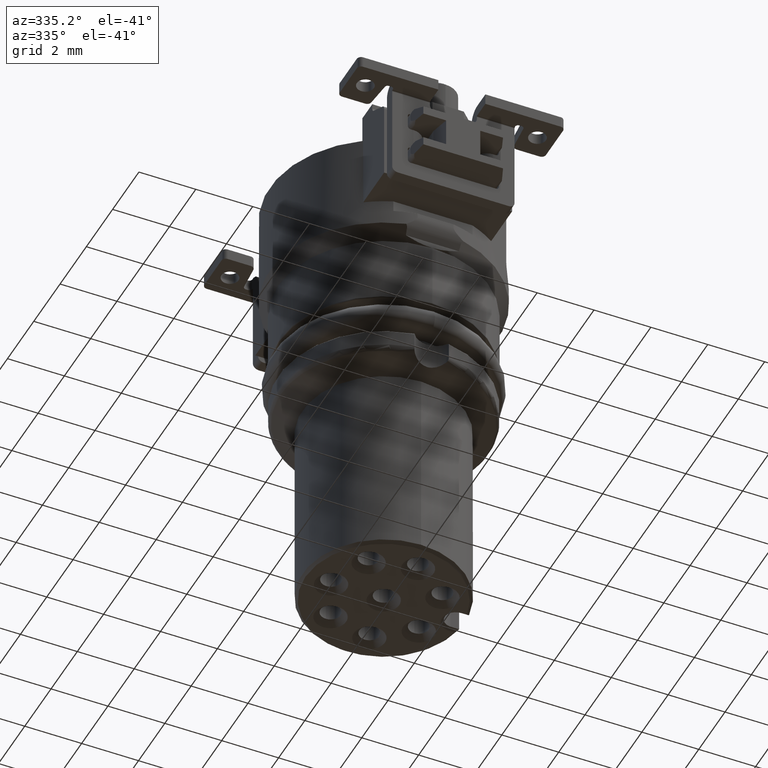
[diagram: clean part render]
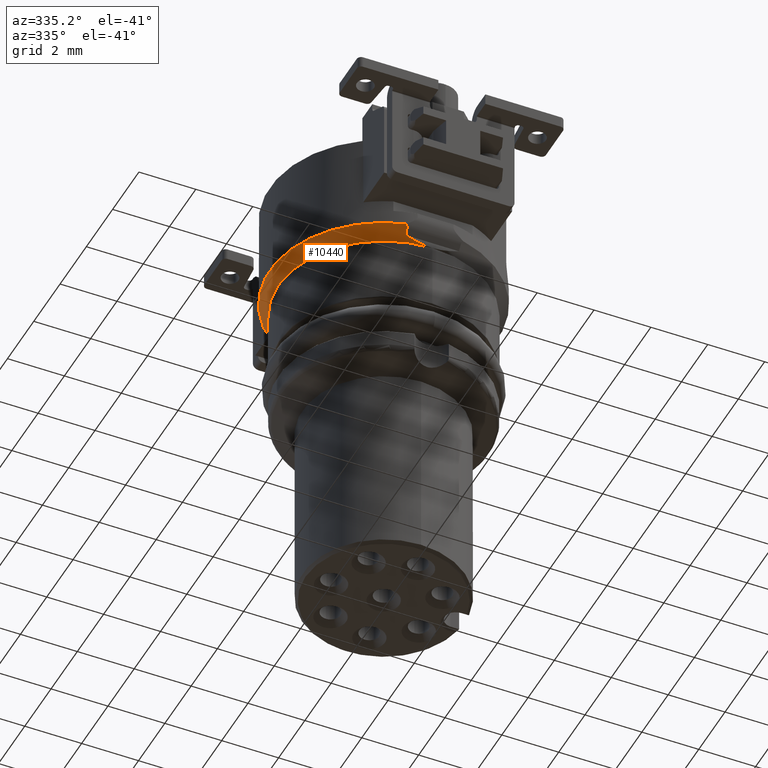
[diagram: same view with one face highlighted and labeled with its STEP entity id]
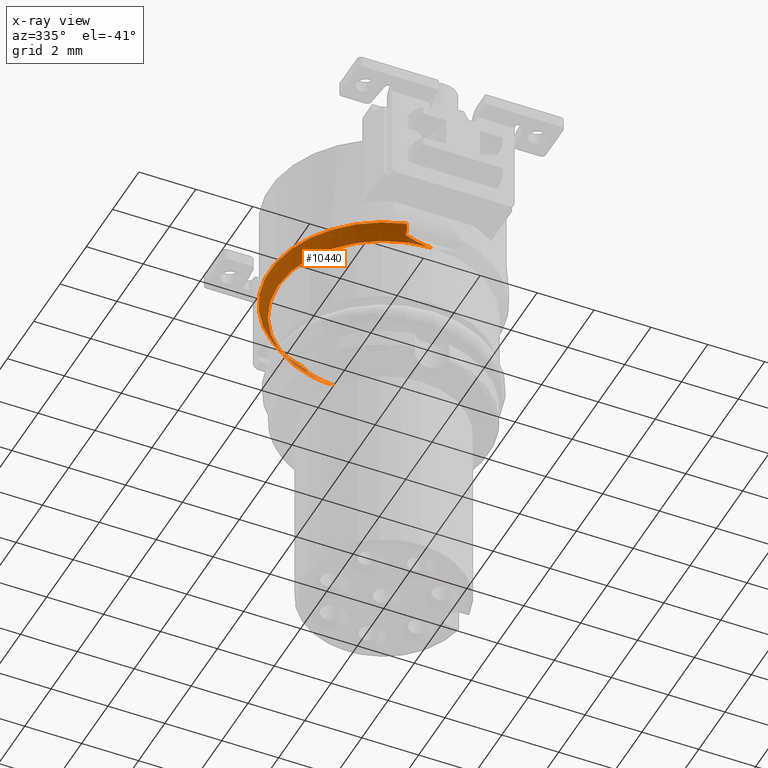
[diagram: x-ray of the same camera — body ghosted, the highlighted face saturated]
A machine part, auxiliary view. The second image highlights one B-rep face of the part: STEP entity #10440.
The next image is the same camera in x-ray: the body ghosted, the highlighted face saturated — about 3% of this face is hidden behind the body in this view.
In plain terms, the highlighted conical surface has half-angle 30 deg.
Its self-contained STEP definition (entity closure, byte-faithful):
#524=CARTESIAN_POINT('',(-9.943720652625E-1,3.874432112688E0,-4.5E0));
#575=CARTESIAN_POINT('',(-9.943720652625E-1,-3.874432112688E0,-4.5E0));
#588=CARTESIAN_POINT('',(0.E0,0.E0,-4.5E0));
#589=DIRECTION('',(0.E0,0.E0,1.E0));
#590=DIRECTION('',(-2.485930163156E-1,9.686080281719E-1,0.E0));
#591=AXIS2_PLACEMENT_3D('',#588,#589,#590);
#2651=CARTESIAN_POINT('',(1.068376835849E-8,3.699999999971E0,
-5.019615242373E0));
#2652=CARTESIAN_POINT('',(-7.504329832607E-2,3.699999999971E0,
-5.019615244249E0));
#2653=CARTESIAN_POINT('',(-2.260781828589E-1,3.700000000014E0,
-5.011668687322E0));
#2654=CARTESIAN_POINT('',(-4.541779621526E-1,3.699999999996E0,
-4.975552484746E0));
#2655=CARTESIAN_POINT('',(-6.877179817763E-1,3.700000000001E0,
-4.914057580533E0));
#2656=CARTESIAN_POINT('',(-8.494914143789E-1,3.7E0,-4.854322807607E0));
#2657=CARTESIAN_POINT('',(-9.315641318417E-1,3.7E0,-4.819615242271E0));
#2659=CARTESIAN_POINT('',(-9.458364821559E-1,3.816025403784E0,
-4.618653347947E0));
#2660=CARTESIAN_POINT('',(-9.442525268213E-1,3.803050933852E0,
-4.641125789072E0));
#2661=CARTESIAN_POINT('',(-9.410833939143E-1,3.777157165658E0,
-4.685975111183E0));
#2662=CARTESIAN_POINT('',(-9.363259719431E-1,3.738482027975E0,
-4.752962414639E0));
#2663=CARTESIAN_POINT('',(-9.331518381993E-1,3.712808951286E0,
-4.797429487852E0));
#2664=CARTESIAN_POINT('',(-9.315641318417E-1,3.7E0,-4.819615242271E0));
#2666=CARTESIAN_POINT('',(-9.943720652625E-1,3.874432112688E0,-4.5E0));
#2667=CARTESIAN_POINT('',(-9.841651531226E-1,3.868544423280E0,
-4.514272497552E0));
#2668=CARTESIAN_POINT('',(-9.670116381037E-1,3.856292283016E0,
-4.542124732746E0));
#2669=CARTESIAN_POINT('',(-9.508935599502E-1,3.836255484421E0,
-4.582537309674E0));
#2670=CARTESIAN_POINT('',(-9.466618478052E-1,3.822786125861E0,
-4.606943433814E0));
#2671=CARTESIAN_POINT('',(-9.458364821559E-1,3.816025403784E0,
-4.618653347947E0));
#2673=CARTESIAN_POINT('',(-9.458364821559E-1,-3.816025403784E0,
-4.618653347947E0));
#2674=CARTESIAN_POINT('',(-9.466628519931E-1,-3.822794351350E0,
-4.606929186851E0));
#2675=CARTESIAN_POINT('',(-9.509026141288E-1,-3.836273175767E0,
-4.582503802808E0));
#2676=CARTESIAN_POINT('',(-9.670263563274E-1,-3.856304178709E0,
-4.542098553465E0));
#2677=CARTESIAN_POINT('',(-9.841727652113E-1,-3.868548814188E0,
-4.514261853440E0));
#2678=CARTESIAN_POINT('',(-9.943720652625E-1,-3.874432112688E0,-4.5E0));
#2680=CARTESIAN_POINT('',(-9.315641318417E-1,-3.7E0,-4.819615242271E0));
#2681=CARTESIAN_POINT('',(-9.331518382033E-1,-3.712808951318E0,
-4.797429487796E0));
#2682=CARTESIAN_POINT('',(-9.363259719524E-1,-3.738482028051E0,
-4.752962414509E0));
#2683=CARTESIAN_POINT('',(-9.410833939235E-1,-3.777157165733E0,
-4.685975111053E0));
#2684=CARTESIAN_POINT('',(-9.442525268252E-1,-3.803050933884E0,
-4.641125789016E0));
#2685=CARTESIAN_POINT('',(-9.458364821559E-1,-3.816025403784E0,
-4.618653347947E0));
#2687=CARTESIAN_POINT('',(-9.315641318417E-1,-3.7E0,-4.819615242271E0));
#2688=CARTESIAN_POINT('',(-8.493670666593E-1,-3.7E0,-4.854375392762E0));
#2689=CARTESIAN_POINT('',(-6.874080008922E-1,-3.700000000001E0,
-4.914161153097E0));
#2690=CARTESIAN_POINT('',(-4.538442470193E-1,-3.699999999996E0,
-4.975620152893E0));
#2691=CARTESIAN_POINT('',(-2.258823231950E-1,-3.700000000014E0,
-5.011683513965E0));
#2692=CARTESIAN_POINT('',(-7.496878670292E-2,-3.699999999971E0,
-5.019615242373E0));
#2693=CARTESIAN_POINT('',(-1.068378148800E-8,-3.699999999971E0,
-5.019615242373E0));
#2707=CARTESIAN_POINT('',(0.E0,0.E0,-5.019615242271E0));
#2708=DIRECTION('',(0.E0,0.E0,1.E0));
#2709=DIRECTION('',(0.E0,1.E0,0.E0));
#2710=AXIS2_PLACEMENT_3D('',#2707,#2708,#2709);
#5933=CARTESIAN_POINT('',(-1.068378148800E-8,-3.699999999971E0,
-5.019615242373E0));
#5934=VERTEX_POINT('',#5933);
#5935=CARTESIAN_POINT('',(1.068376835849E-8,3.699999999971E0,
-5.019615242373E0));
#5936=VERTEX_POINT('',#5935);
#5955=VERTEX_POINT('',#524);
#5970=VERTEX_POINT('',#575);
#5971=VERTEX_POINT('',#2657);
#5972=VERTEX_POINT('',#2659);
#5973=VERTEX_POINT('',#2673);
#5974=VERTEX_POINT('',#2680);
#10421=CARTESIAN_POINT('',(0.E0,0.E0,-4.759807621263E0));
#10422=DIRECTION('',(0.E0,0.E0,1.E0));
#10423=DIRECTION('',(0.E0,-1.E0,0.E0));
#10424=AXIS2_PLACEMENT_3D('',#10421,#10422,#10423);
#10425=CONICAL_SURFACE('',#10424,3.849999999926E0,3.E1);
#10426=ORIENTED_EDGE('',*,*,#10413,.T.);
#10428=ORIENTED_EDGE('',*,*,#10427,.F.);
#10429=ORIENTED_EDGE('',*,*,#7221,.F.);
#10430=ORIENTED_EDGE('',*,*,#7606,.T.);
#10431=ORIENTED_EDGE('',*,*,#10380,.F.);
#10433=ORIENTED_EDGE('',*,*,#10432,.F.);
#10435=ORIENTED_EDGE('',*,*,#10434,.T.);
#10437=ORIENTED_EDGE('',*,*,#10436,.F.);
#10438=EDGE_LOOP('',(#10426,#10428,#10429,#10430,#10431,#10433,#10435,#10437));
#10439=FACE_OUTER_BOUND('',#10438,.F.);
#592=CIRCLE('',#591,4.E0);
#2658=B_SPLINE_CURVE_WITH_KNOTS('',3,(#2651,#2652,#2653,#2654,#2655,#2656,
#2657),.UNSPECIFIED.,.F.,.F.,(4,1,1,1,4),(0.E0,2.5E-1,5.E-1,7.5E-1,1.E0),
.UNSPECIFIED.);
#2665=B_SPLINE_CURVE_WITH_KNOTS('',3,(#2659,#2660,#2661,#2662,#2663,#2664),
.UNSPECIFIED.,.F.,.F.,(4,1,1,4),(0.E0,3.333333333333E-1,6.666666666667E-1,1.E0),
.UNSPECIFIED.);
#2672=B_SPLINE_CURVE_WITH_KNOTS('',3,(#2666,#2667,#2668,#2669,#2670,#2671),
.UNSPECIFIED.,.F.,.F.,(4,1,1,4),(0.E0,3.333333333333E-1,6.666666666667E-1,1.E0),
.UNSPECIFIED.);
#2679=B_SPLINE_CURVE_WITH_KNOTS('',3,(#2673,#2674,#2675,#2676,#2677,#2678),
.UNSPECIFIED.,.F.,.F.,(4,1,1,4),(0.E0,3.333333333333E-1,6.666666666667E-1,1.E0),
.UNSPECIFIED.);
#2686=B_SPLINE_CURVE_WITH_KNOTS('',3,(#2680,#2681,#2682,#2683,#2684,#2685),
.UNSPECIFIED.,.F.,.F.,(4,1,1,4),(0.E0,3.333333333333E-1,6.666666666667E-1,1.E0),
.UNSPECIFIED.);
#2694=B_SPLINE_CURVE_WITH_KNOTS('',3,(#2687,#2688,#2689,#2690,#2691,#2692,
#2693),.UNSPECIFIED.,.F.,.F.,(4,1,1,1,4),(0.E0,2.5E-1,5.E-1,7.5E-1,1.E0),
.UNSPECIFIED.);
#2711=CIRCLE('',#2710,3.7E0);
#7221=EDGE_CURVE('',#5955,#5972,#2672,.T.);
#7606=EDGE_CURVE('',#5955,#5970,#592,.T.);
#10380=EDGE_CURVE('',#5973,#5970,#2679,.T.);
#10413=EDGE_CURVE('',#5936,#5971,#2658,.T.);
#10427=EDGE_CURVE('',#5972,#5971,#2665,.T.);
#10432=EDGE_CURVE('',#5974,#5973,#2686,.T.);
#10434=EDGE_CURVE('',#5974,#5934,#2694,.T.);
#10436=EDGE_CURVE('',#5936,#5934,#2711,.T.);
#10440=ADVANCED_FACE('',(#10439),#10425,.T.);